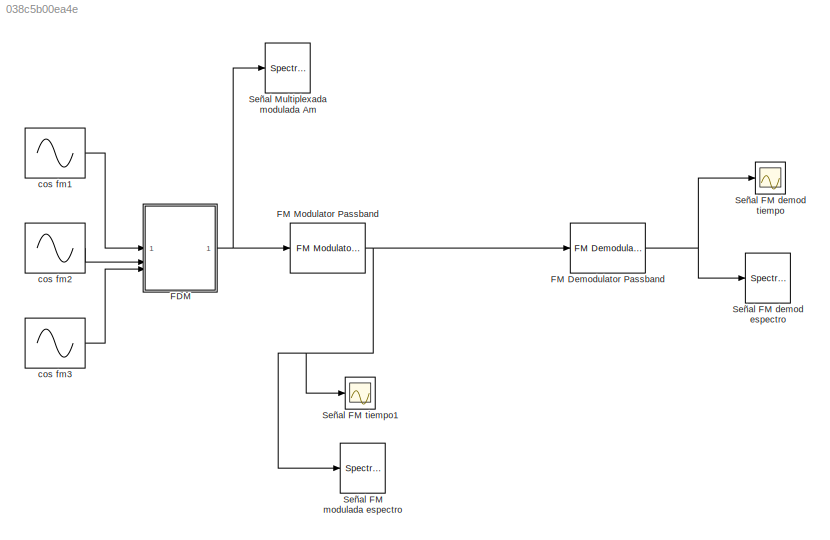
MODEL slx_038c5b00ea4e
KIND model
CONFIG AbsTol = auto
CONFIG EnableMultiTasking = off
CONFIG FixedStep = auto
CONFIG MaxStep = auto
CONFIG MinStep = auto
CONFIG RelTol = 1e-3
CONFIG SampleTimeConstraint = Unconstrained
CONFIG SolverName = VariableStepAuto
CONFIG StartTime = 0.0
CONFIG StopTime = 2
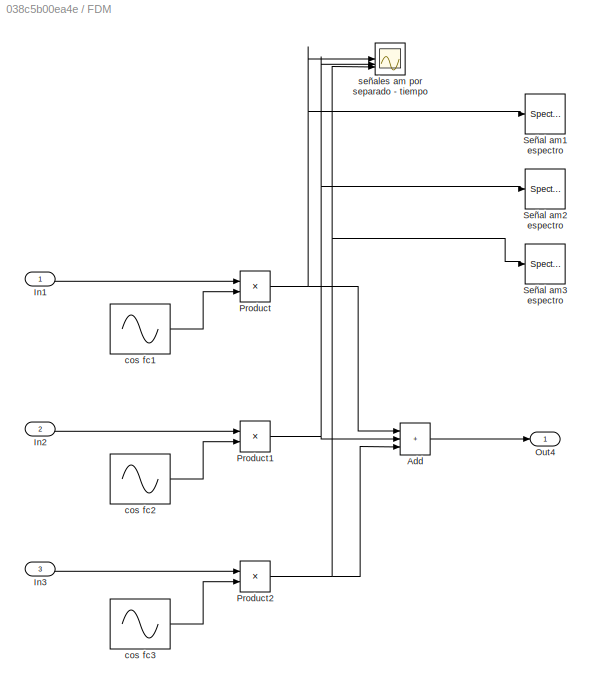
BLOCK [SubSystem] FDM
BLOCK [Sum] FDM/Add
  IconShape = rectangular
  Inputs = +++
BLOCK [Inport] FDM/In1
BLOCK [Inport] FDM/In2
  Port = 2
BLOCK [Inport] FDM/In3
  Port = 3
BLOCK [Outport] FDM/Out4
BLOCK [Product] FDM/Product
BLOCK [Product] FDM/Product1
BLOCK [Product] FDM/Product2
BLOCK [SpectrumAnalyzer] FDM/Señal am1 espectro
  GraphicalSettings = {"GraphicalSettings":{"Style":{"BackgroundColor":[0.12941176470588237,0.12941176470588237,0.12941176470588237],"AxesColor":[0.07058823529411765,0.07058823529411765,0.07058823529411765],"LabelsColor":[0.8509803921568627,0.8509803921568627,0.8509803921568627],"PreserveColors":false,"Visible":[true],"LineStyle":["-"],"LineColor":[[1,1,0.06666666666666667]],"LineWidth":[1.5],"Marker":["none"],"FontSiz...<+929ch>  <repeated x5 — deduplicated; at blocks: Señal am1 espectro, Señal am2 espectro, Señal am3 espectro, Señal FM demod espectro, Señal Multiplexada modulada Am>
  OpenAtSimulationStart = off
  SampleRate = 44.1e3
  ScopeFrameLocation = window
  ShowLegend = on
  StartFrequency = 20
  StopFrequency = 20e3
  WasSavedAsWebScope = on
  WindowPosition = [1.000000,1.000000,1920.000000,1057.000000,]
  YLimits = [-65.29745179,26.83993796]
BLOCK [SpectrumAnalyzer] FDM/Señal am2 espectro
  OpenAtSimulationStart = off
  SampleRate = 44.1e3
  ScopeFrameLocation = window
  ShowLegend = on
  StartFrequency = 20
  StopFrequency = 20e3
  WasSavedAsWebScope = on
  WindowPosition = [1.000000,1.000000,1920.000000,1057.000000,]
  YLimits = [-65.31113844,26.96311882]
BLOCK [SpectrumAnalyzer] FDM/Señal am3 espectro
  ExpandToolstrip = on
  OpenAtSimulationStart = off
  SampleRate = 44.1e3
  ScopeFrameLocation = window
  ShowLegend = on
  StartFrequency = 20
  StopFrequency = 20e3
  WasSavedAsWebScope = on
  WindowPosition = [1.000000,1.000000,1920.000000,1057.000000,]
  YLimits = [-65.31099224,26.96180511]
BLOCK [Sin] FDM/cos fc1
  Frequency = 2*pi*fc1_mux
  Phase = pi/2
  SampleTime = ts_mux
BLOCK [Sin] FDM/cos fc2
  Frequency = 2*pi*fc2_mux
  Phase = pi/2
  SampleTime = ts_mux
BLOCK [Sin] FDM/cos fc3
  Frequency = 2*pi*fc3_mux
  Phase = pi/2
  SampleTime = ts_mux
BLOCK [Scope] FDM/señales am por separado - tiempo
  Floating = off
  NumInputPorts = 3
  ScopeSpecificationString = Simulink.scopes.TimeScopeBlockCfg('CurrentConfiguration', extmgr.ConfigurationSet(extmgr.Configuration('Core','General UI',true),extmgr.Configuration('Core','Source UI',true),extmgr.Configuration('Sources','WiredSimulink',true,'DataLoggingVariableName','ScopeData1'),extmgr.Configuration('Visuals','Time Domain',true,'SerializedDisplays',{struct('MinYLimReal','-1.19494','MaxYLimReal','1.24388','YLab...<+2780ch>
BLOCK [Reference] FM Demodulator Passband  REF=commanapbnd3/FM
Demodulator
Passband
  SourceBlock = commanapbnd3/FM\nDemodulator\nPassband
  SourceType = FM Demodulator Passband
BLOCK [Reference] FM Modulator Passband  REF=commanapbnd3/FM
Modulator
Passband
  SourceBlock = commanapbnd3/FM\nModulator\nPassband
  SourceType = FM Modulator Passband
BLOCK [SpectrumAnalyzer] Señal FM demod espectro
  OpenAtSimulationStart = off
  SampleRate = 44.1e3
  ScopeFrameLocation = window
  ShowLegend = on
  StartFrequency = 20
  StopFrequency = 20e3
  WasSavedAsWebScope = on
  WindowPosition = [1.000000,1.000000,1920.000000,1057.000000,]
  YLimits = [-69.60389106,27.43586964]
BLOCK [Scope] Señal FM demod tiempo
  Floating = off
  NumInputPorts = 1
  ScopeSpecificationString = Simulink.scopes.TimeScopeBlockCfg('CurrentConfiguration', extmgr.ConfigurationSet(extmgr.Configuration('Core','General UI',true),extmgr.Configuration('Core','Source UI',true),extmgr.Configuration('Sources','WiredSimulink',true,'DataLoggingVariableName','ScopeData1'),extmgr.Configuration('Visuals','Time Domain',true,'SerializedDisplays',{struct('MinYLimReal','-3.33034','MaxYLimReal','3.70337','YLab...<+1455ch>
BLOCK [SpectrumAnalyzer] Señal FM modulada espectro
  GraphicalSettings = {"GraphicalSettings":{"Style":{"BackgroundColor":[0.12941176470588237,0.12941176470588237,0.12941176470588237],"AxesColor":[0.07058823529411765,0.07058823529411765,0.07058823529411765],"LabelsColor":[0.8509803921568627,0.8509803921568627,0.8509803921568627],"PreserveColors":false,"Visible":[true],"LineStyle":["-"],"LineColor":[[1,1,0.06666666666666667]],"LineWidth":[1.5],"Marker":["none"],"FontSiz...<+930ch>
  OpenAtSimulationStart = off
  SampleRate = 44.1e3
  ScopeFrameLocation = window
  ShowLegend = on
  StartFrequency = 20
  StopFrequency = 20e3
  WasSavedAsWebScope = on
  WindowPosition = [1.000000,1.000000,1920.000000,1057.000000,]
  YLimits = [-246.88599121,53.29540529]
BLOCK [Scope] Señal FM tiempo1
  Floating = off
  NumInputPorts = 1
  ScopeSpecificationString = Simulink.scopes.TimeScopeBlockCfg('CurrentConfiguration', extmgr.ConfigurationSet(extmgr.Configuration('Core','General UI',true),extmgr.Configuration('Core','Source UI',true),extmgr.Configuration('Sources','WiredSimulink',true,'DataLoggingVariableName','ScopeData1'),extmgr.Configuration('Visuals','Time Domain',true,'SerializedDisplays',{struct('MinYLimReal','-3.33034','MaxYLimReal','3.70337','YLab...<+1453ch>
BLOCK [SpectrumAnalyzer] Señal Multiplexada modulada Am
  OpenAtSimulationStart = off
  SampleRate = 44.1e3
  ScopeFrameLocation = window
  ShowLegend = on
  StartFrequency = 20
  StopFrequency = 20e3
  Title = Señal modulada Am Multiplexada
  WasSavedAsWebScope = on
  WindowPosition = [1.000000,1.000000,1920.000000,1057.000000,]
  YLimits = [-54.57593285,25.7705198]
BLOCK [Sin] cos fm1
  Frequency = 2*pi*fm1_mux
  Phase = pi/2
  SampleTime = ts_mux
BLOCK [Sin] cos fm2
  Frequency = 2*pi*fm2_mux
  Phase = pi/2
  SampleTime = ts_mux
BLOCK [Sin] cos fm3
  Frequency = 2*pi*fm3_mux
  Phase = pi/2
  SampleTime = ts_mux
LINE FDM/Add:1 -> FDM/Out4:1
LINE FDM/In1:1 -> FDM/Product:1
LINE FDM/In2:1 -> FDM/Product1:1
LINE FDM/In3:1 -> FDM/Product2:1
NET FDM/Product1:1 -> FDM/Add:2, FDM/Señal am2 espectro:1, FDM/señales am por separado - tiempo:2
NET FDM/Product2:1 -> FDM/Add:3, FDM/Señal am3 espectro:1, FDM/señales am por separado - tiempo:3
NET FDM/Product:1 -> FDM/Add:1, FDM/Señal am1 espectro:1, FDM/señales am por separado - tiempo:1
LINE FDM/cos fc1:1 -> FDM/Product:2
LINE FDM/cos fc2:1 -> FDM/Product1:2
LINE FDM/cos fc3:1 -> FDM/Product2:2
NET FDM:1 -> FM Modulator Passband:1, Señal Multiplexada modulada Am:1
NET FM Demodulator Passband:1 -> Señal FM demod espectro:1, Señal FM demod tiempo:1
NET FM Modulator Passband:1 -> FM Demodulator Passband:1, Señal FM modulada espectro:1, Señal FM tiempo1:1
LINE cos fm1:1 -> FDM:1
LINE cos fm2:1 -> FDM:2
LINE cos fm3:1 -> FDM:3
note: NET lines group one-source signal fan-out (src -> all destinations, sorted); 1:1 wires keep LINE
